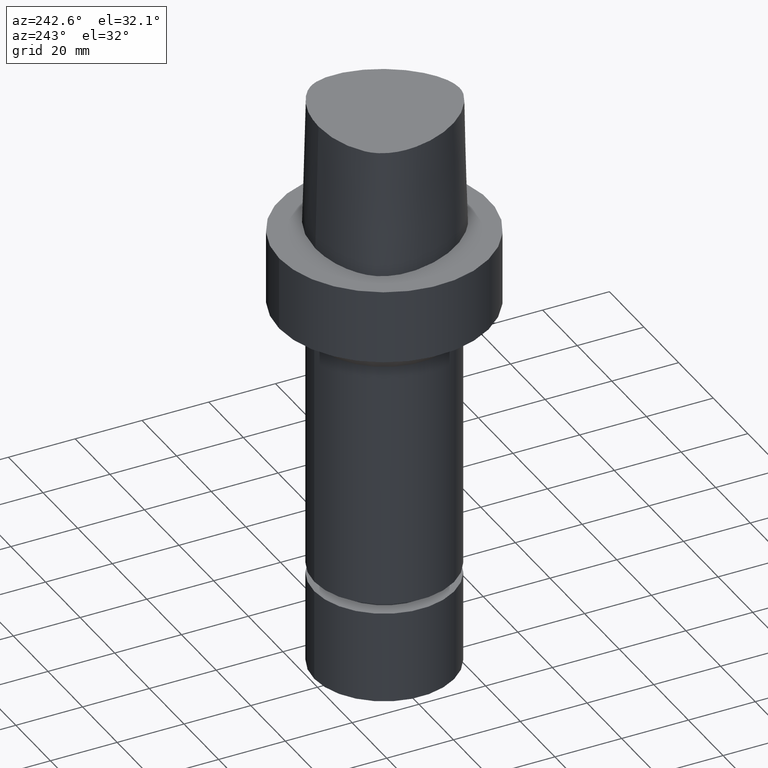
[diagram: clean part render]
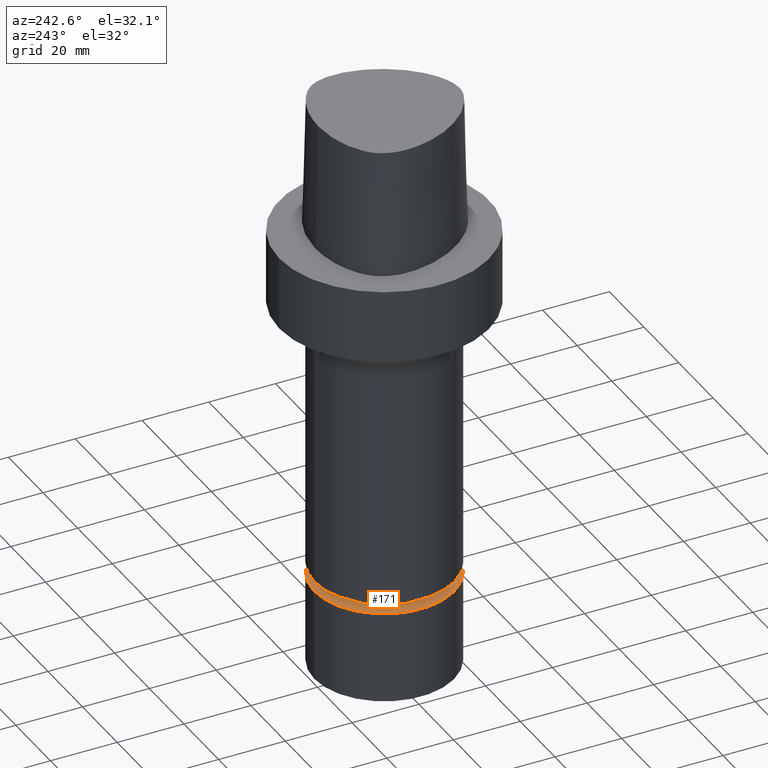
[diagram: same view with one face highlighted and labeled with its STEP entity id]
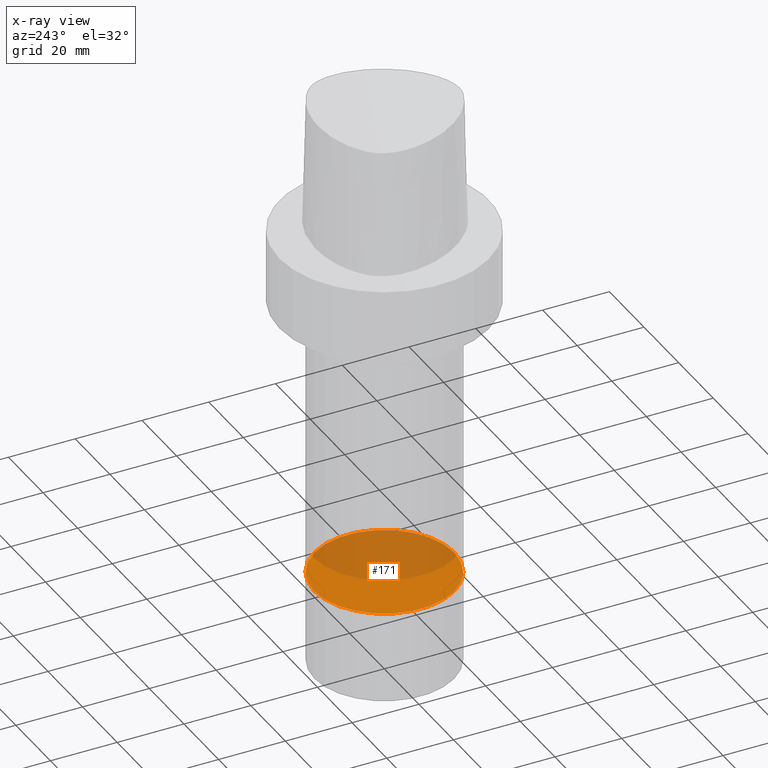
[diagram: x-ray of the same camera — body ghosted, the highlighted face saturated]
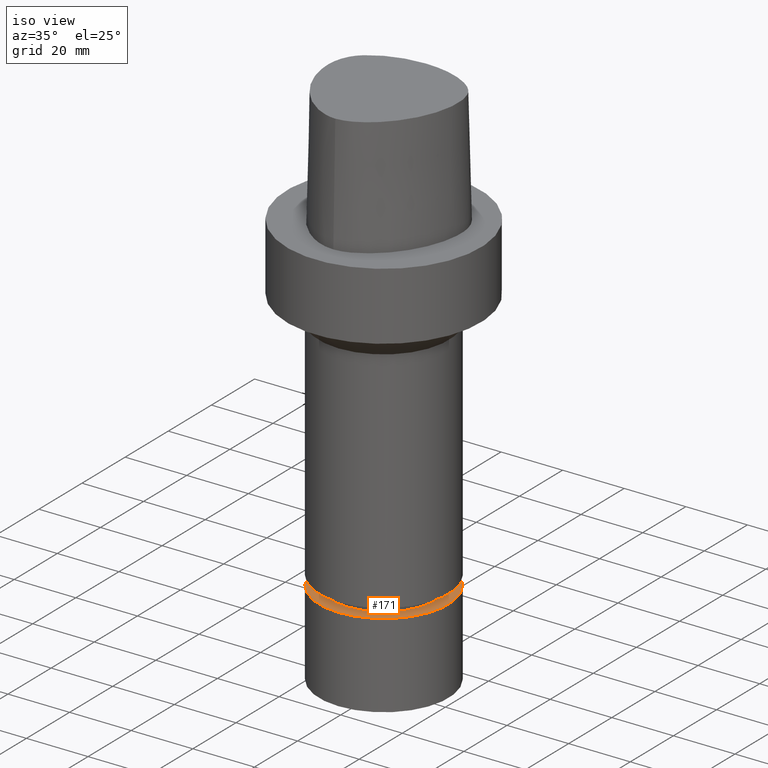
[diagram: same view with one face highlighted and labeled with its STEP entity id]
A machine part, auxiliary view. The second image highlights one B-rep face of the part: STEP entity #171.
The next image is the same camera in x-ray: the body ghosted, the highlighted face saturated — about 51% of this face is hidden behind the body in this view.
A second angle (iso view) of the same face is appended — the face is thin or edge-on in the first view.
In plain terms, the highlighted planar face has unit normal (-0, -0, 1).
Its self-contained STEP definition (entity closure, byte-faithful):
#122=EDGE_CURVE('Unnamed[1]',#267,#267,#268,.T.);
#171=ADVANCED_FACE('Unnamed[1]',(#335),#336,.T.);
#267=VERTEX_POINT('',#546);
#268=CIRCLE('',#547,21.0);
#335=FACE_OUTER_BOUND('',#734,.T.);
#336=PLANE('',#735);
#546=CARTESIAN_POINT('',(6.58247654541702E-015,21.0,-107.5));
#547=AXIS2_PLACEMENT_3D('',#814,#815,#816);
#734=EDGE_LOOP('',(#883));
#735=AXIS2_PLACEMENT_3D('',#884,#885,#886);
#814=CARTESIAN_POINT('',(6.58247654541702E-015,1.3164953090834E-014,-107.5));
#815=DIRECTION('',(6.12323399573677E-017,1.22464679914735E-016,-1.0));
#816=DIRECTION('',(-1.23259516440783E-032,1.0,1.22464679914735E-016));
#883=ORIENTED_EDGE('',*,*,#122,.F.);
#884=CARTESIAN_POINT('',(6.58247654541702E-015,10.5,-107.5));
#885=DIRECTION('',(-6.12323399573677E-017,-1.22464679914735E-016,1.0));
#886=DIRECTION('',(1.23259516440783E-032,-1.0,-1.22464679914735E-016));